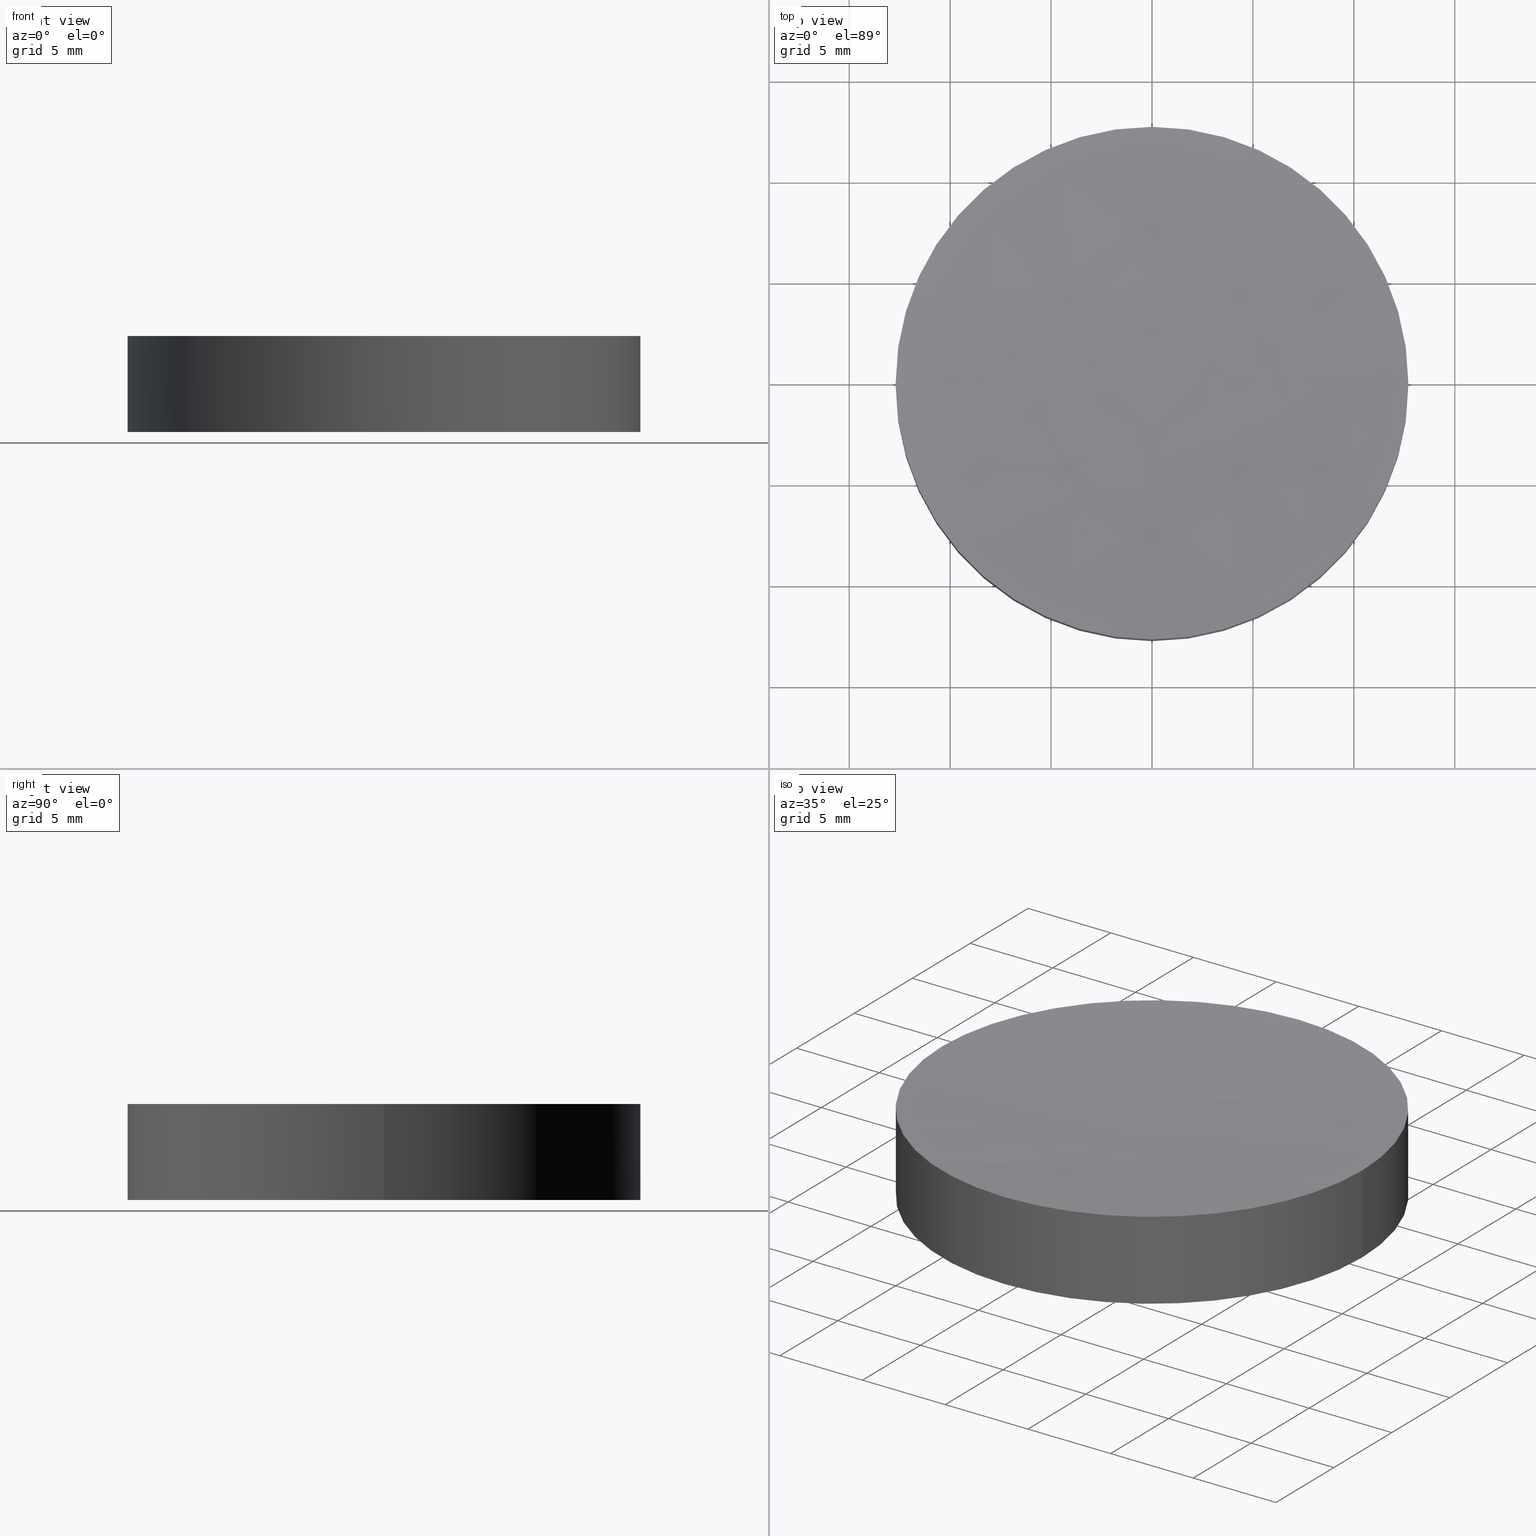
[diagram: canonical four-view strip — front | top / right | iso, engineering-drawing reading convention]
A machine part, canonical four-view strip (front | top / right | iso — engineering-drawing reading convention). The complete STEP part file that produces these views, byte-faithful:
ISO-10303-21;
HEADER;
FILE_DESCRIPTION (( 'STEP AP203' ),
    '1' );
FILE_NAME ('114-0214E BK7 bi-cv 25.4 F-100.STEP',
    '2019-01-21T06:35:39',
    ( '' ),
    ( '' ),
    'SwSTEP 2.0',
    'SolidWorks 2017',
    '' );
FILE_SCHEMA (( 'CONFIG_CONTROL_DESIGN' ));
ENDSEC;

DATA;
#1 = LINE ( 'NONE', #70, #239 ) ;
#2 = CARTESIAN_POINT ( 'NONE',  ( 4.996003610813200500E-016, 2.442490654175340100E-015, 3.976089718365059400 ) ) ;
#3 = AXIS2_PLACEMENT_3D ( 'NONE', #247, #107, #274 ) ;
#4 = LOCAL_TIME ( 8, 35, 39.00000000000000000, #139 ) ;
#5 = DIRECTION ( 'NONE',  ( 2.786057141690520200E-016, 1.000000000000000000, -2.661129013962503900E-016 ) ) ;
#6 = ORIENTED_EDGE ( 'NONE', *, *, #273, .T. ) ;
#7 = CARTESIAN_POINT ( 'NONE',  ( 12.80843556786029500, 4.305750462270683700, 3.721136836858725400 ) ) ;
#8 = CARTESIAN_POINT ( 'NONE',  ( -7.129765185504777100E-015, -12.85162862928874500, 3.994803794327109100 ) ) ;
#9 = DATE_TIME_ROLE ( 'classification_date' ) ;
#10 = COORDINATED_UNIVERSAL_TIME_OFFSET ( 2, 0, .AHEAD. ) ;
#11 = APPROVAL_ROLE ( '' ) ;
#12 =( NAMED_UNIT ( * ) SI_UNIT ( $, .STERADIAN. ) SOLID_ANGLE_UNIT ( ) );
#13 = CALENDAR_DATE ( 2019, 21, 1 ) ;
#14 = DATE_AND_TIME ( #13, #74 ) ;
#15 = AXIS2_PLACEMENT_3D ( 'NONE', #213, #27, #5 ) ;
#16 = CARTESIAN_POINT ( 'NONE',  ( 4.239458280148784100, 12.85162862928871500, -0.7948037943270877000 ) ) ;
#17 = CC_DESIGN_PERSON_AND_ORGANIZATION_ASSIGNMENT ( #126, #265, ( #197 ) ) ;
#18 = CARTESIAN_POINT ( 'NONE',  ( 12.69999999999999900, 2.442490654175340100E-015, 3.976089718365059400 ) ) ;
#19 = CARTESIAN_POINT ( 'NONE',  ( 12.80843556786025900, -4.305750462270646400, -0.5211368368587260300 ) ) ;
#20 = VERTEX_POINT ( 'NONE', #18 ) ;
#21 = CARTESIAN_POINT ( 'NONE',  ( -4.239458280148785900, 12.85162862928875600, 3.994803794327095300 ) ) ;
#22 = AXIS2_PLACEMENT_3D ( 'NONE', #264, #285, #34 ) ;
#23 = CARTESIAN_POINT ( 'NONE',  ( -12.69999999999999900, 3.997792089092478900E-015, 3.976089718365059400 ) ) ;
#24 = DIRECTION ( 'NONE',  ( 1.000000000000000000, 8.881784197001252300E-016, 0.0000000000000000000 ) ) ;
#25 =( BOUNDED_SURFACE ( )  B_SPLINE_SURFACE ( 3, 3, ( 
 ( #133, #180, #208, #44 ),
 ( #136, #134, #250, #106 ),
 ( #185, #182, #245, #222 ),
 ( #49, #252, #272, #248 ) ),
 .UNSPECIFIED., .F., .F., .F. ) 
 B_SPLINE_SURFACE_WITH_KNOTS ( ( 4, 4 ),
 ( 4, 4 ),
 ( 0.0000000000000000000, 1.000000000000000000 ),
 ( 0.0000000000000000000, 1.000000000000000000 ),
 .UNSPECIFIED. ) 
 GEOMETRIC_REPRESENTATION_ITEM ( )  RATIONAL_B_SPLINE_SURFACE ( (
 ( 1.000000000000000000, 0.9987437524745305100, 0.9987437524745305100, 1.000000000000000000),
 ( 0.9949197584255219400, 0.9936698929409592000, 0.9936698929409592000, 0.9949197584255219400),
 ( 0.9949197584255219400, 0.9936698929409592000, 0.9936698929409592000, 0.9949197584255219400),
 ( 1.000000000000000000, 0.9987437524745305100, 0.9987437524745305100, 1.000000000000000000) ) ) 
 REPRESENTATION_ITEM ( '' )  SURFACE ( )  );
#26 = ADVANCED_FACE ( 'NONE', ( #57 ), #98, .T. ) ;
#27 = DIRECTION ( 'NONE',  ( 1.000000000000000000, -2.786057141690520200E-016, -2.407720383784880200E-016 ) ) ;
#28 = APPROVAL_DATE_TIME ( #14, #212 ) ;
#29 = CARTESIAN_POINT ( 'NONE',  ( 2.255140518769849200E-014, -12.85162862928874500, 3.994803794327112600 ) ) ;
#30 = AXIS2_PLACEMENT_3D ( 'NONE', #119, #90, #259 ) ;
#31 = ORIENTED_EDGE ( 'NONE', *, *, #199, .F. ) ;
#32 = CARTESIAN_POINT ( 'NONE',  ( -12.80843556786030200, 4.305750462270676600, 3.721136836858725000 ) ) ;
#33 = CARTESIAN_POINT ( 'NONE',  ( 1.734723475976807100E-014, 4.305750462270680100, 2.933712597558335600 ) ) ;
#34 = DIRECTION ( 'NONE',  ( 1.000000000000000000, 0.0000000000000000000, 0.0000000000000000000 ) ) ;
#35 = PERSON_AND_ORGANIZATION_ROLE ( 'design_owner' ) ;
#36 = ORGANIZATION ( 'UNSPECIFIED', 'UNSPECIFIED', '' ) ;
#37 = FACE_OUTER_BOUND ( 'NONE', #46, .T. ) ;
#38 = CARTESIAN_POINT ( 'NONE',  ( 4.282919401184628300, -4.305750462270643700, 0.2662874024416550000 ) ) ;
#39 = LOCAL_TIME ( 8, 35, 39.00000000000000000, #96 ) ;
#40 = CARTESIAN_POINT ( 'NONE',  ( 8.557768192019947800, -4.305750462270644600, 0.003482508009883364100 ) ) ;
#41 = AXIS2_PLACEMENT_3D ( 'NONE', #62, #153, #105 ) ;
#42 = FACE_OUTER_BOUND ( 'NONE', #51, .T. ) ;
#43 = CARTESIAN_POINT ( 'NONE',  ( 4.239458280148777000, -12.85162862928869200, -0.7948037943271016900 ) ) ;
#44 = CARTESIAN_POINT ( 'NONE',  ( -1.734723475976807100E-015, 12.85162862928871900, -0.7948037943270905800 ) ) ;
#45 = CARTESIAN_POINT ( 'NONE',  ( -8.470927846836909600, 12.85162862928875600, 4.254941864040541900 ) ) ;
#46 = EDGE_LOOP ( 'NONE', ( #69, #148, #243 ) ) ;
#47 = CARTESIAN_POINT ( 'NONE',  ( 4.996003610813200500E-016, 2.442490654175340100E-015, -0.7760897183650610200 ) ) ;
#48 = ADVANCED_FACE ( 'NONE', ( #215 ), #171, .F. ) ;
#49 = CARTESIAN_POINT ( 'NONE',  ( -12.67846138054760500, -12.85162862928868900, -1.574237610048351300 ) ) ;
#50 = CARTESIAN_POINT ( 'NONE',  ( 1.421085471520200100E-014, 7.105427357601000300E-015, 107.5000000000000000 ) ) ;
#51 = EDGE_LOOP ( 'NONE', ( #193, #6, #143 ) ) ;
#52 = CARTESIAN_POINT ( 'NONE',  ( -9.766176765780043300E-015, -4.305750462270667700, 2.933712597558344500 ) ) ;
#53 = CARTESIAN_POINT ( 'NONE',  ( -12.67846138054761300, -12.85162862928874900, 4.774237610048358800 ) ) ;
#54 = ORIENTED_EDGE ( 'NONE', *, *, #240, .T. ) ;
#55 = CARTESIAN_POINT ( 'NONE',  ( -4.282919401184633700, 4.305750462270679300, 2.933712597558331100 ) ) ;
#56 = CIRCLE ( 'NONE', #109, 12.69999999999999900 ) ;
#57 = FACE_OUTER_BOUND ( 'NONE', #161, .T. ) ;
#58 = PERSON_AND_ORGANIZATION ( #86, #36 ) ;
#59 = CARTESIAN_POINT ( 'NONE',  ( 4.282919401184631000, 4.305750462270668600, 0.2662874024416685400 ) ) ;
#60 = MANIFOLD_SOLID_BREP ( 'Imported1', #238 ) ;
#61 = DESIGN_CONTEXT ( 'detailed design', #169, 'design' ) ;
#62 = CARTESIAN_POINT ( 'NONE',  ( 4.996003610813200500E-016, 2.442490654175340100E-015, -0.7760897183650610200 ) ) ;
#63 = CARTESIAN_POINT ( 'NONE',  ( -1.425310075416590300E-014, 12.69999999999996600, 3.976089718365062100 ) ) ;
#64 = CARTESIAN_POINT ( 'NONE',  ( -1.429083953050163700E-014, 12.85162862928875800, 3.994803794327095300 ) ) ;
#65 = DIRECTION ( 'NONE',  ( -0.0000000000000000000, -0.0000000000000000000, -1.000000000000000000 ) ) ;
#66 = PERSON_AND_ORGANIZATION ( #86, #36 ) ;
#67 = DIRECTION ( 'NONE',  ( -2.786057141690520200E-016, 1.000000000000000000, 2.661129013962503900E-016 ) ) ;
#68 = PRODUCT ( '114-0214E BK7 bi-cv 25.4 F-100', '114-0214E BK7 bi-cv 25.4 F-100', '', ( #76 ) ) ;
#69 = ORIENTED_EDGE ( 'NONE', *, *, #249, .F. ) ;
#70 = CARTESIAN_POINT ( 'NONE',  ( -12.69999999999999900, 3.997792089092478900E-015, -0.7760897183650610200 ) ) ;
#71 = CARTESIAN_POINT ( 'NONE',  ( -4.282919401184630100, -4.305750462270668600, 2.933712597558345800 ) ) ;
#72 = DIRECTION ( 'NONE',  ( 1.000000000000000000, 0.0000000000000000000, 0.0000000000000000000 ) ) ;
#73 = DIRECTION ( 'NONE',  ( 0.0000000000000000000, 0.0000000000000000000, 1.000000000000000000 ) ) ;
#74 = LOCAL_TIME ( 8, 35, 39.00000000000000000, #200 ) ;
#75 = LOCAL_TIME ( 8, 35, 39.00000000000000000, #10 ) ;
#76 = MECHANICAL_CONTEXT ( 'NONE', #170, 'mechanical' ) ;
#77 = CIRCLE ( 'NONE', #30, 12.69999999999999900 ) ;
#78 = ORIENTED_EDGE ( 'NONE', *, *, #258, .T. ) ;
#79 = CYLINDRICAL_SURFACE ( 'NONE', #145, 12.69999999999999900 ) ;
#80 = ORIENTED_EDGE ( 'NONE', *, *, #249, .T. ) ;
#81 = CARTESIAN_POINT ( 'NONE',  ( 8.470927846836886500, 12.85162862928871500, -1.054941864040524800 ) ) ;
#82 = APPROVAL_PERSON_ORGANIZATION ( #210, #212, #97 ) ;
#83 = ORIENTED_EDGE ( 'NONE', *, *, #165, .F. ) ;
#84 = CARTESIAN_POINT ( 'NONE',  ( -12.69999999999999900, 3.997792089092478900E-015, -0.7760897183650610200 ) ) ;
#85 = DIRECTION ( 'NONE',  ( 1.000000000000000000, 0.0000000000000000000, 0.0000000000000000000 ) ) ;
#86 = PERSON ( 'UNSPECIFIED', 'UNSPECIFIED', 'UNSPECIFIED', ('UNSPECIFIED'), ('UNSPECIFIED'), ('UNSPECIFIED') ) ;
#87 = CARTESIAN_POINT ( 'NONE',  ( 12.69999999999999900, 2.442490654175340100E-015, -0.7760897183650610200 ) ) ;
#88 = CALENDAR_DATE ( 2019, 21, 1 ) ;
#89 = CARTESIAN_POINT ( 'NONE',  ( 1.908195823574487800E-014, -4.305750462270667700, 2.933712597558348500 ) ) ;
#90 = DIRECTION ( 'NONE',  ( 0.0000000000000000000, 0.0000000000000000000, 1.000000000000000000 ) ) ;
#91 = DIRECTION ( 'NONE',  ( -0.0000000000000000000, -0.0000000000000000000, -1.000000000000000000 ) ) ;
#92 = CIRCLE ( 'NONE', #15, 104.2999999999999800 ) ;
#93 = CC_DESIGN_PERSON_AND_ORGANIZATION_ASSIGNMENT ( #58, #35, ( #68 ) ) ;
#94 = EDGE_CURVE ( 'NONE', #118, #201, #104, .T. ) ;
#95 = CARTESIAN_POINT ( 'NONE',  ( -4.239458280148777900, -12.85162862928874500, 3.994803794327109100 ) ) ;
#96 = COORDINATED_UNIVERSAL_TIME_OFFSET ( 2, 0, .AHEAD. ) ;
#97 = APPROVAL_ROLE ( '' ) ;
#98 = CYLINDRICAL_SURFACE ( 'NONE', #41, 12.69999999999999900 ) ;
#99 = SECURITY_CLASSIFICATION ( '', '', #286 ) ;
#100 = CC_DESIGN_PERSON_AND_ORGANIZATION_ASSIGNMENT ( #278, #194, ( #237 ) ) ;
#101 = EDGE_LOOP ( 'NONE', ( #31, #183, #54, #269, #177, #78 ) ) ;
#102 = CARTESIAN_POINT ( 'NONE',  ( 8.470927846836879400, -12.85162862928869200, -1.054941864040538800 ) ) ;
#103 = PERSON_AND_ORGANIZATION ( #86, #36 ) ;
#104 = CIRCLE ( 'NONE', #255, 104.2999999999999800 ) ;
#105 = DIRECTION ( 'NONE',  ( 1.000000000000000000, 0.0000000000000000000, 0.0000000000000000000 ) ) ;
#106 = CARTESIAN_POINT ( 'NONE',  ( -1.734723475976807100E-015, 4.305750462270669500, 0.2662874024416657100 ) ) ;
#107 = DIRECTION ( 'NONE',  ( 0.0000000000000000000, 0.0000000000000000000, 1.000000000000000000 ) ) ;
#108 = DIRECTION ( 'NONE',  ( -0.0000000000000000000, -0.0000000000000000000, -1.000000000000000000 ) ) ;
#109 = AXIS2_PLACEMENT_3D ( 'NONE', #124, #146, #289 ) ;
#110 = FACE_OUTER_BOUND ( 'NONE', #101, .T. ) ;
#111 = CARTESIAN_POINT ( 'NONE',  ( -1.216539013092934000E-014, 4.305750462270680100, 2.933712597558331100 ) ) ;
#112 = ORIENTED_EDGE ( 'NONE', *, *, #132, .T. ) ;
#113 = ADVANCED_FACE ( 'NONE', ( #42 ), #25, .F. ) ;
#114 = CARTESIAN_POINT ( 'NONE',  ( 4.282919401184637200, -4.305750462270666800, 2.933712597558349300 ) ) ;
#115 = CARTESIAN_POINT ( 'NONE',  ( -8.557768192019967300, -4.305750462270669500, 3.196517491990124200 ) ) ;
#116 = EDGE_CURVE ( 'NONE', #20, #201, #151, .T. ) ;
#117 = CARTESIAN_POINT ( 'NONE',  ( 12.80843556786029500, -4.305750462270665000, 3.721136836858739600 ) ) ;
#118 = VERTEX_POINT ( 'NONE', #63 ) ;
#119 = CARTESIAN_POINT ( 'NONE',  ( 4.996003610813200500E-016, 2.442490654175340100E-015, -0.7760897183650610200 ) ) ;
#120 = CARTESIAN_POINT ( 'NONE',  ( 4.996003610813200500E-016, 2.442490654175340100E-015, -0.7760897183650610200 ) ) ;
#121 = APPROVAL_STATUS ( 'not_yet_approved' ) ;
#122 = SHAPE_DEFINITION_REPRESENTATION ( #231, #260 ) ;
#123 = ORIENTED_EDGE ( 'NONE', *, *, #240, .F. ) ;
#124 = CARTESIAN_POINT ( 'NONE',  ( 4.996003610813200500E-016, 2.442490654175340100E-015, -0.7760897183650610200 ) ) ;
#125 = APPROVAL_STATUS ( 'not_yet_approved' ) ;
#126 = PERSON_AND_ORGANIZATION ( #86, #36 ) ;
#127 = ORIENTED_EDGE ( 'NONE', *, *, #132, .F. ) ;
#128 = CARTESIAN_POINT ( 'NONE',  ( 12.67846138054757600, -12.85162862928869600, -1.574237610048339500 ) ) ;
#129 = CC_DESIGN_APPROVAL ( #212, ( #197 ) ) ;
#130 = CARTESIAN_POINT ( 'NONE',  ( 2.850169424570362500E-014, 12.85162862928871900, -0.7948037943270869200 ) ) ;
#131 = CARTESIAN_POINT ( 'NONE',  ( 12.80843556786026300, 4.305750462270666800, -0.5211368368587127000 ) ) ;
#132 = EDGE_CURVE ( 'NONE', #234, #118, #137, .T. ) ;
#133 = CARTESIAN_POINT ( 'NONE',  ( -12.67846138054759900, 12.85162862928872200, -1.574237610048337300 ) ) ;
#134 = CARTESIAN_POINT ( 'NONE',  ( -8.557768192019953100, 4.305750462270672200, 0.003482508009887592500 ) ) ;
#135 = CALENDAR_DATE ( 2019, 21, 1 ) ;
#136 = CARTESIAN_POINT ( 'NONE',  ( -12.80843556786028100, 4.305750462270673000, -0.5211368368587242500 ) ) ;
#137 = CIRCLE ( 'NONE', #246, 12.69999999999999900 ) ;
#138 = DIRECTION ( 'NONE',  ( 0.0000000000000000000, 0.0000000000000000000, 1.000000000000000000 ) ) ;
#139 = COORDINATED_UNIVERSAL_TIME_OFFSET ( 2, 0, .AHEAD. ) ;
#140 = VERTEX_POINT ( 'NONE', #84 ) ;
#141 = CARTESIAN_POINT ( 'NONE',  ( -12.80843556786029700, -4.305750462270671300, 3.721136836858738800 ) ) ;
#142 = PERSON_AND_ORGANIZATION_ROLE ( 'classification_officer' ) ;
#143 = ORIENTED_EDGE ( 'NONE', *, *, #291, .F. ) ;
#144 = DATE_TIME_ROLE ( 'creation_date' ) ;
#145 = AXIS2_PLACEMENT_3D ( 'NONE', #120, #73, #163 ) ;
#146 = DIRECTION ( 'NONE',  ( 0.0000000000000000000, 0.0000000000000000000, 1.000000000000000000 ) ) ;
#147 =( LENGTH_UNIT ( ) NAMED_UNIT ( * ) SI_UNIT ( .MILLI., .METRE. ) );
#148 = ORIENTED_EDGE ( 'NONE', *, *, #94, .T. ) ;
#149 = CC_DESIGN_APPROVAL ( #290, ( #237 ) ) ;
#150 =( BOUNDED_SURFACE ( )  B_SPLINE_SURFACE ( 3, 3, ( 
 ( #186, #160, #190, #211 ),
 ( #7, #166, #256, #33 ),
 ( #117, #226, #114, #89 ),
 ( #189, #253, #162, #29 ) ),
 .UNSPECIFIED., .F., .F., .T. ) 
 B_SPLINE_SURFACE_WITH_KNOTS ( ( 4, 4 ),
 ( 4, 4 ),
 ( 0.0000000000000000000, 1.000000000000000000 ),
 ( 0.0000000000000000000, 1.000000000000000000 ),
 .UNSPECIFIED. ) 
 GEOMETRIC_REPRESENTATION_ITEM ( )  RATIONAL_B_SPLINE_SURFACE ( (
 ( 1.000000000000000000, 0.9987437524745305100, 0.9987437524745305100, 1.000000000000000000),
 ( 0.9949197584255219400, 0.9936698929409592000, 0.9936698929409592000, 0.9949197584255219400),
 ( 0.9949197584255219400, 0.9936698929409592000, 0.9936698929409592000, 0.9949197584255219400),
 ( 1.000000000000000000, 0.9987437524745305100, 0.9987437524745305100, 1.000000000000000000) ) ) 
 REPRESENTATION_ITEM ( '' )  SURFACE ( )  );
#151 = CIRCLE ( 'NONE', #173, 12.69999999999999900 ) ;
#152 = ORIENTED_EDGE ( 'NONE', *, *, #94, .F. ) ;
#153 = DIRECTION ( 'NONE',  ( 0.0000000000000000000, 0.0000000000000000000, 1.000000000000000000 ) ) ;
#154 = CIRCLE ( 'NONE', #251, 12.69999999999999900 ) ;
#155 = DIRECTION ( 'NONE',  ( -1.000000000000000000, -2.786057141690520200E-016, 2.407720383784880200E-016 ) ) ;
#156 = CARTESIAN_POINT ( 'NONE',  ( 2.846395546936790300E-014, 12.69999999999993400, -0.7760897183650582500 ) ) ;
#157 =( GEOMETRIC_REPRESENTATION_CONTEXT ( 3 ) GLOBAL_UNCERTAINTY_ASSIGNED_CONTEXT ( ( #158 ) ) GLOBAL_UNIT_ASSIGNED_CONTEXT ( ( #147, #233, #12 ) ) REPRESENTATION_CONTEXT ( 'NONE', 'WORKASPACE' ) );
#158 = UNCERTAINTY_MEASURE_WITH_UNIT (LENGTH_MEASURE( 1.000000000000000100E-005 ), #147, 'distance_accuracy_value', 'NONE');
#159 = COORDINATED_UNIVERSAL_TIME_OFFSET ( 2, 0, .AHEAD. ) ;
#160 = CARTESIAN_POINT ( 'NONE',  ( 8.470927846836898900, 12.85162862928876000, 4.254941864040543600 ) ) ;
#161 = EDGE_LOOP ( 'NONE', ( #218, #279, #220, #112, #80, #188 ) ) ;
#162 = CARTESIAN_POINT ( 'NONE',  ( 4.239458280148791200, -12.85162862928874200, 3.994803794327111700 ) ) ;
#163 = DIRECTION ( 'NONE',  ( 1.000000000000000000, 0.0000000000000000000, 0.0000000000000000000 ) ) ;
#164 = CC_DESIGN_DATE_AND_TIME_ASSIGNMENT ( #270, #144, ( #237 ) ) ;
#165 = EDGE_CURVE ( 'NONE', #174, #167, #184, .T. ) ;
#166 = CARTESIAN_POINT ( 'NONE',  ( 8.557768192019967300, 4.305750462270682800, 3.196517491990112700 ) ) ;
#167 = VERTEX_POINT ( 'NONE', #156 ) ;
#168 = DIRECTION ( 'NONE',  ( 1.000000000000000000, -1.776356839400250500E-015, 0.0000000000000000000 ) ) ;
#169 = APPLICATION_CONTEXT ( 'configuration controlled 3d designs of mechanical parts and assemblies' ) ;
#170 = APPLICATION_CONTEXT ( 'configuration controlled 3d designs of mechanical parts and assemblies' ) ;
#171 =( BOUNDED_SURFACE ( )  B_SPLINE_SURFACE ( 3, 3, ( 
 ( #130, #16, #81, #271 ),
 ( #242, #59, #293, #131 ),
 ( #179, #38, #40, #19 ),
 ( #203, #43, #102, #128 ) ),
 .UNSPECIFIED., .F., .F., .F. ) 
 B_SPLINE_SURFACE_WITH_KNOTS ( ( 4, 4 ),
 ( 4, 4 ),
 ( 0.0000000000000000000, 1.000000000000000000 ),
 ( 0.0000000000000000000, 1.000000000000000000 ),
 .UNSPECIFIED. ) 
 GEOMETRIC_REPRESENTATION_ITEM ( )  RATIONAL_B_SPLINE_SURFACE ( (
 ( 1.000000000000000000, 0.9987437524745305100, 0.9987437524745305100, 1.000000000000000000),
 ( 0.9949197584255219400, 0.9936698929409592000, 0.9936698929409592000, 0.9949197584255219400),
 ( 0.9949197584255219400, 0.9936698929409592000, 0.9936698929409592000, 0.9949197584255219400),
 ( 1.000000000000000000, 0.9987437524745305100, 0.9987437524745305100, 1.000000000000000000) ) ) 
 REPRESENTATION_ITEM ( '' )  SURFACE ( )  );
#172 = CC_DESIGN_PERSON_AND_ORGANIZATION_ASSIGNMENT ( #66, #142, ( #99 ) ) ;
#173 = AXIS2_PLACEMENT_3D ( 'NONE', #2, #65, #85 ) ;
#174 = VERTEX_POINT ( 'NONE', #225 ) ;
#175 = FACE_OUTER_BOUND ( 'NONE', #229, .T. ) ;
#176 = DATE_AND_TIME ( #135, #4 ) ;
#177 = ORIENTED_EDGE ( 'NONE', *, *, #116, .T. ) ;
#178 = CIRCLE ( 'NONE', #3, 12.69999999999999900 ) ;
#179 = CARTESIAN_POINT ( 'NONE',  ( 2.397703148098204700E-014, -4.305750462270642800, 0.2662874024416560000 ) ) ;
#180 = CARTESIAN_POINT ( 'NONE',  ( -8.470927846836884700, 12.85162862928871900, -1.054941864040534100 ) ) ;
#181 = EDGE_CURVE ( 'NONE', #174, #20, #235, .T. ) ;
#182 = CARTESIAN_POINT ( 'NONE',  ( -8.557768192019956600, -4.305750462270641100, 0.003482508009873931100 ) ) ;
#183 = ORIENTED_EDGE ( 'NONE', *, *, #291, .T. ) ;
#184 = CIRCLE ( 'NONE', #268, 12.69999999999999900 ) ;
#185 = CARTESIAN_POINT ( 'NONE',  ( -12.80843556786028300, -4.305750462270641100, -0.5211368368587381300 ) ) ;
#186 = CARTESIAN_POINT ( 'NONE',  ( 12.67846138054761200, 12.85162862928876100, 4.774237610048345500 ) ) ;
#187 = CC_DESIGN_DATE_AND_TIME_ASSIGNMENT ( #204, #9, ( #99 ) ) ;
#188 = ORIENTED_EDGE ( 'NONE', *, *, #181, .F. ) ;
#189 = CARTESIAN_POINT ( 'NONE',  ( 12.67846138054761700, -12.85162862928874200, 4.774237610048359700 ) ) ;
#190 = CARTESIAN_POINT ( 'NONE',  ( 4.239458280148784100, 12.85162862928876000, 3.994803794327098000 ) ) ;
#191 = APPLICATION_PROTOCOL_DEFINITION ( 'international standard', 'config_control_design', 1994, #170 ) ;
#192 = PERSON_AND_ORGANIZATION ( #86, #36 ) ;
#193 = ORIENTED_EDGE ( 'NONE', *, *, #219, .F. ) ;
#194 = PERSON_AND_ORGANIZATION_ROLE ( 'creator' ) ;
#195 =( BOUNDED_SURFACE ( )  B_SPLINE_SURFACE ( 3, 3, ( 
 ( #64, #21, #45, #206 ),
 ( #111, #55, #228, #32 ),
 ( #52, #71, #115, #141 ),
 ( #8, #95, #283, #53 ) ),
 .UNSPECIFIED., .F., .F., .F. ) 
 B_SPLINE_SURFACE_WITH_KNOTS ( ( 4, 4 ),
 ( 4, 4 ),
 ( 0.0000000000000000000, 1.000000000000000000 ),
 ( 0.0000000000000000000, 1.000000000000000000 ),
 .UNSPECIFIED. ) 
 GEOMETRIC_REPRESENTATION_ITEM ( )  RATIONAL_B_SPLINE_SURFACE ( (
 ( 1.000000000000000000, 0.9987437524745305100, 0.9987437524745305100, 1.000000000000000000),
 ( 0.9949197584255219400, 0.9936698929409592000, 0.9936698929409592000, 0.9949197584255219400),
 ( 0.9949197584255219400, 0.9936698929409592000, 0.9936698929409592000, 0.9949197584255219400),
 ( 1.000000000000000000, 0.9987437524745305100, 0.9987437524745305100, 1.000000000000000000) ) ) 
 REPRESENTATION_ITEM ( '' )  SURFACE ( )  );
#196 = APPROVAL_DATE_TIME ( #266, #290 ) ;
#197 = PRODUCT_DEFINITION_FORMATION_WITH_SPECIFIED_SOURCE ( 'ANY', '', #68, .NOT_KNOWN. ) ;
#198 = AXIS2_PLACEMENT_3D ( 'NONE', #230, #91, #168 ) ;
#199 = EDGE_CURVE ( 'NONE', #140, #234, #1, .T. ) ;
#200 = COORDINATED_UNIVERSAL_TIME_OFFSET ( 2, 0, .AHEAD. ) ;
#201 = VERTEX_POINT ( 'NONE', #295 ) ;
#202 = VECTOR ( 'NONE', #209, 1000.000000000000000 ) ;
#203 = CARTESIAN_POINT ( 'NONE',  ( 2.134061990070679300E-014, -12.85162862928869200, -0.7948037943271008000 ) ) ;
#204 = DATE_AND_TIME ( #88, #75 ) ;
#205 = APPROVAL ( #121, 'UNSPECIFIED' ) ;
#206 = CARTESIAN_POINT ( 'NONE',  ( -12.67846138054762400, 12.85162862928875400, 4.774237610048345500 ) ) ;
#207 = ORIENTED_EDGE ( 'NONE', *, *, #273, .F. ) ;
#208 = CARTESIAN_POINT ( 'NONE',  ( -4.239458280148771700, 12.85162862928871900, -0.7948037943270907000 ) ) ;
#209 = DIRECTION ( 'NONE',  ( 0.0000000000000000000, 0.0000000000000000000, 1.000000000000000000 ) ) ;
#210 = PERSON_AND_ORGANIZATION ( #86, #36 ) ;
#211 = CARTESIAN_POINT ( 'NONE',  ( 1.561251128379126400E-014, 12.85162862928875800, 3.994803794327098900 ) ) ;
#212 = APPROVAL ( #125, 'UNSPECIFIED' ) ;
#213 = CARTESIAN_POINT ( 'NONE',  ( 0.0000000000000000000, 1.421085471520200100E-014, -104.3000000000000000 ) ) ;
#214 = APPROVAL_ROLE ( '' ) ;
#215 = FACE_OUTER_BOUND ( 'NONE', #244, .T. ) ;
#216 = CC_DESIGN_PERSON_AND_ORGANIZATION_ASSIGNMENT ( #232, #287, ( #197 ) ) ;
#217 = APPROVAL_DATE_TIME ( #176, #205 ) ;
#218 = ORIENTED_EDGE ( 'NONE', *, *, #165, .T. ) ;
#219 = EDGE_CURVE ( 'NONE', #167, #140, #178, .T. ) ;
#220 = ORIENTED_EDGE ( 'NONE', *, *, #199, .T. ) ;
#221 = ADVANCED_FACE ( 'NONE', ( #175 ), #195, .F. ) ;
#222 = CARTESIAN_POINT ( 'NONE',  ( -5.204170427930421300E-015, -4.305750462270643700, 0.2662874024416520000 ) ) ;
#223 = CARTESIAN_POINT ( 'NONE',  ( 4.996003610813200500E-016, 2.442490654175340100E-015, 3.976089718365059400 ) ) ;
#224 = LOCAL_TIME ( 8, 35, 39.00000000000000000, #159 ) ;
#225 = CARTESIAN_POINT ( 'NONE',  ( 12.69999999999999900, 2.442490654175340100E-015, -0.7760897183650610200 ) ) ;
#226 = CARTESIAN_POINT ( 'NONE',  ( 8.557768192019969100, -4.305750462270665000, 3.196517491990126500 ) ) ;
#227 = CARTESIAN_POINT ( 'NONE',  ( 4.996003610813200500E-016, 2.442490654175340100E-015, 3.976089718365059400 ) ) ;
#228 = CARTESIAN_POINT ( 'NONE',  ( -8.557768192019972600, 4.305750462270678400, 3.196517491990110500 ) ) ;
#229 = EDGE_LOOP ( 'NONE', ( #152, #127, #292 ) ) ;
#230 = CARTESIAN_POINT ( 'NONE',  ( 4.996003610813200500E-016, 2.442490654175340100E-015, 3.976089718365059400 ) ) ;
#231 = PRODUCT_DEFINITION_SHAPE ( 'NONE', 'NONE',  #237 ) ;
#232 = PERSON_AND_ORGANIZATION ( #86, #36 ) ;
#233 =( NAMED_UNIT ( * ) PLANE_ANGLE_UNIT ( ) SI_UNIT ( $, .RADIAN. ) );
#234 = VERTEX_POINT ( 'NONE', #23 ) ;
#235 = LINE ( 'NONE', #87, #202 ) ;
#236 = APPROVAL_STATUS ( 'not_yet_approved' ) ;
#237 = PRODUCT_DEFINITION ( 'UNKNOWN', '', #197, #61 ) ;
#238 = CLOSED_SHELL ( 'NONE', ( #113, #280, #26, #48, #277, #221 ) ) ;
#239 = VECTOR ( 'NONE', #276, 1000.000000000000000 ) ;
#240 = EDGE_CURVE ( 'NONE', #262, #174, #77, .T. ) ;
#241 = APPROVAL_PERSON_ORGANIZATION ( #103, #205, #11 ) ;
#242 = CARTESIAN_POINT ( 'NONE',  ( 2.637624484613133400E-014, 4.305750462270669500, 0.2662874024416696500 ) ) ;
#243 = ORIENTED_EDGE ( 'NONE', *, *, #116, .F. ) ;
#244 = EDGE_LOOP ( 'NONE', ( #207, #83, #123 ) ) ;
#245 = CARTESIAN_POINT ( 'NONE',  ( -4.282919401184623900, -4.305750462270642800, 0.2662874024416518900 ) ) ;
#246 = AXIS2_PLACEMENT_3D ( 'NONE', #223, #108, #24 ) ;
#247 = CARTESIAN_POINT ( 'NONE',  ( 4.996003610813200500E-016, 2.442490654175340100E-015, -0.7760897183650610200 ) ) ;
#248 = CARTESIAN_POINT ( 'NONE',  ( -8.673617379884035500E-015, -12.85162862928869200, -0.7948037943271044600 ) ) ;
#249 = EDGE_CURVE ( 'NONE', #118, #20, #288, .T. ) ;
#250 = CARTESIAN_POINT ( 'NONE',  ( -4.282919401184621200, 4.305750462270669500, 0.2662874024416655400 ) ) ;
#251 = AXIS2_PLACEMENT_3D ( 'NONE', #227, #257, #72 ) ;
#252 = CARTESIAN_POINT ( 'NONE',  ( -8.470927846836891800, -12.85162862928869000, -1.054941864040548100 ) ) ;
#253 = CARTESIAN_POINT ( 'NONE',  ( 8.470927846836906000, -12.85162862928874200, 4.254941864040557900 ) ) ;
#254 = APPROVAL_PERSON_ORGANIZATION ( #192, #290, #214 ) ;
#255 = AXIS2_PLACEMENT_3D ( 'NONE', #50, #155, #67 ) ;
#256 = CARTESIAN_POINT ( 'NONE',  ( 4.282919401184636300, 4.305750462270681000, 2.933712597558334700 ) ) ;
#257 = DIRECTION ( 'NONE',  ( -0.0000000000000000000, -0.0000000000000000000, -1.000000000000000000 ) ) ;
#258 = EDGE_CURVE ( 'NONE', #201, #234, #154, .T. ) ;
#259 = DIRECTION ( 'NONE',  ( 1.000000000000000000, 0.0000000000000000000, 0.0000000000000000000 ) ) ;
#260 = ADVANCED_BREP_SHAPE_REPRESENTATION ( '114-0214E BK7 bi-cv 25.4 F-100', ( #60, #22 ), #157 ) ;
#261 = CALENDAR_DATE ( 2019, 21, 1 ) ;
#262 = VERTEX_POINT ( 'NONE', #281 ) ;
#263 = APPLICATION_PROTOCOL_DEFINITION ( 'international standard', 'config_control_design', 1994, #169 ) ;
#264 = CARTESIAN_POINT ( 'NONE',  ( 0.0000000000000000000, 0.0000000000000000000, 0.0000000000000000000 ) ) ;
#265 = PERSON_AND_ORGANIZATION_ROLE ( 'design_supplier' ) ;
#266 = DATE_AND_TIME ( #284, #224 ) ;
#267 = CC_DESIGN_APPROVAL ( #205, ( #99 ) ) ;
#268 = AXIS2_PLACEMENT_3D ( 'NONE', #47, #138, #275 ) ;
#269 = ORIENTED_EDGE ( 'NONE', *, *, #181, .T. ) ;
#270 = DATE_AND_TIME ( #261, #39 ) ;
#271 = CARTESIAN_POINT ( 'NONE',  ( 12.67846138054758700, 12.85162862928871500, -1.574237610048325700 ) ) ;
#272 = CARTESIAN_POINT ( 'NONE',  ( -4.239458280148777000, -12.85162862928869000, -0.7948037943271045700 ) ) ;
#273 = EDGE_CURVE ( 'NONE', #167, #262, #92, .T. ) ;
#274 = DIRECTION ( 'NONE',  ( 1.000000000000000000, 0.0000000000000000000, 0.0000000000000000000 ) ) ;
#275 = DIRECTION ( 'NONE',  ( 1.000000000000000000, 0.0000000000000000000, 0.0000000000000000000 ) ) ;
#276 = DIRECTION ( 'NONE',  ( 0.0000000000000000000, 0.0000000000000000000, 1.000000000000000000 ) ) ;
#277 = ADVANCED_FACE ( 'NONE', ( #110 ), #79, .T. ) ;
#278 = PERSON_AND_ORGANIZATION ( #86, #36 ) ;
#279 = ORIENTED_EDGE ( 'NONE', *, *, #219, .T. ) ;
#280 = ADVANCED_FACE ( 'NONE', ( #37 ), #150, .F. ) ;
#281 = CARTESIAN_POINT ( 'NONE',  ( 2.138737032947402200E-014, -12.69999999999991900, -0.7760897183650582500 ) ) ;
#282 = CC_DESIGN_SECURITY_CLASSIFICATION ( #99, ( #197 ) ) ;
#283 = CARTESIAN_POINT ( 'NONE',  ( -8.470927846836898900, -12.85162862928874500, 4.254941864040555200 ) ) ;
#284 = CALENDAR_DATE ( 2019, 21, 1 ) ;
#285 = DIRECTION ( 'NONE',  ( 0.0000000000000000000, 0.0000000000000000000, 1.000000000000000000 ) ) ;
#286 = SECURITY_CLASSIFICATION_LEVEL ( 'unclassified' ) ;
#287 = PERSON_AND_ORGANIZATION_ROLE ( 'creator' ) ;
#288 = CIRCLE ( 'NONE', #198, 12.69999999999999900 ) ;
#289 = DIRECTION ( 'NONE',  ( 1.000000000000000000, 0.0000000000000000000, 0.0000000000000000000 ) ) ;
#290 = APPROVAL ( #236, 'UNSPECIFIED' ) ;
#291 = EDGE_CURVE ( 'NONE', #140, #262, #56, .T. ) ;
#292 = ORIENTED_EDGE ( 'NONE', *, *, #258, .F. ) ;
#293 = CARTESIAN_POINT ( 'NONE',  ( 8.557768192019951300, 4.305750462270667700, 0.003482508009896808700 ) ) ;
#294 = PRODUCT_RELATED_PRODUCT_CATEGORY ( 'detail', '', ( #68 ) ) ;
#295 = CARTESIAN_POINT ( 'NONE',  ( -7.176515614272006900E-015, -12.69999999999995500, 3.976089718365062100 ) ) ;
ENDSEC;
END-ISO-10303-21;
